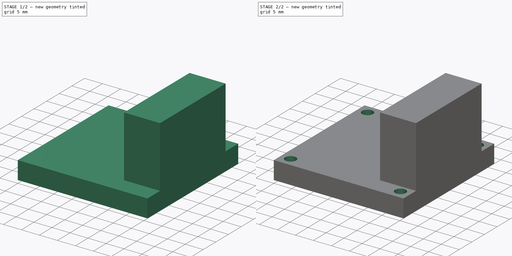
[diagram: build sequence overview — one tinted view per stage of 2, left to right]
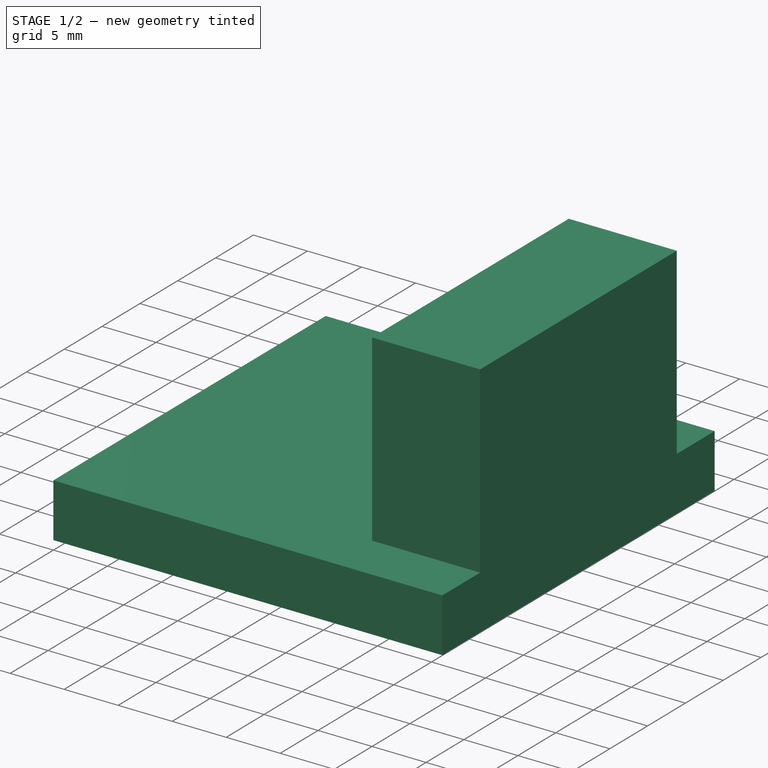
[diagram: stage 1 of 2 — iso view after this stage's code; geometry added in this stage tinted green]
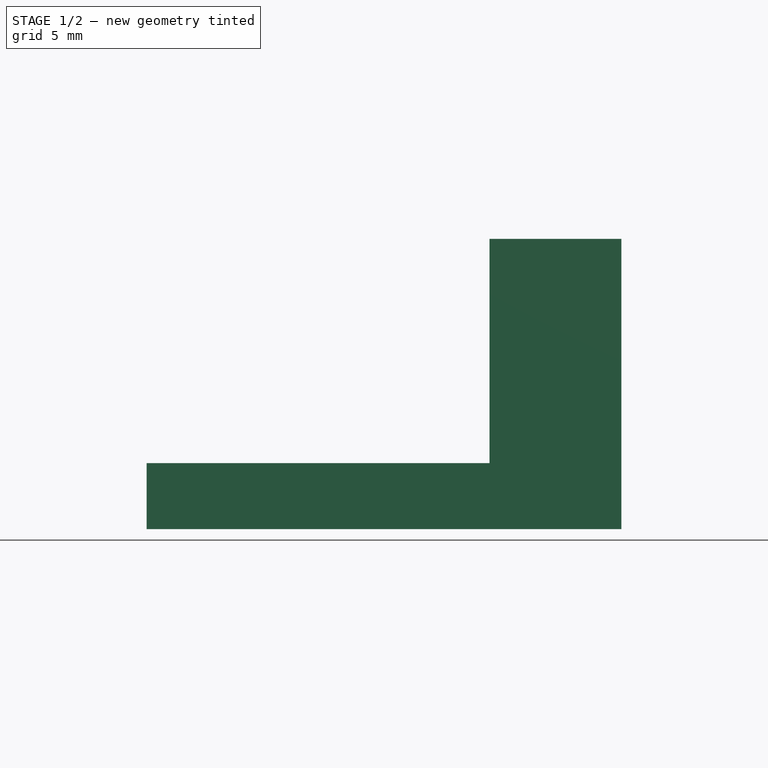
[diagram: stage 1 of 2 — front view after this stage's code; geometry added in this stage tinted green]
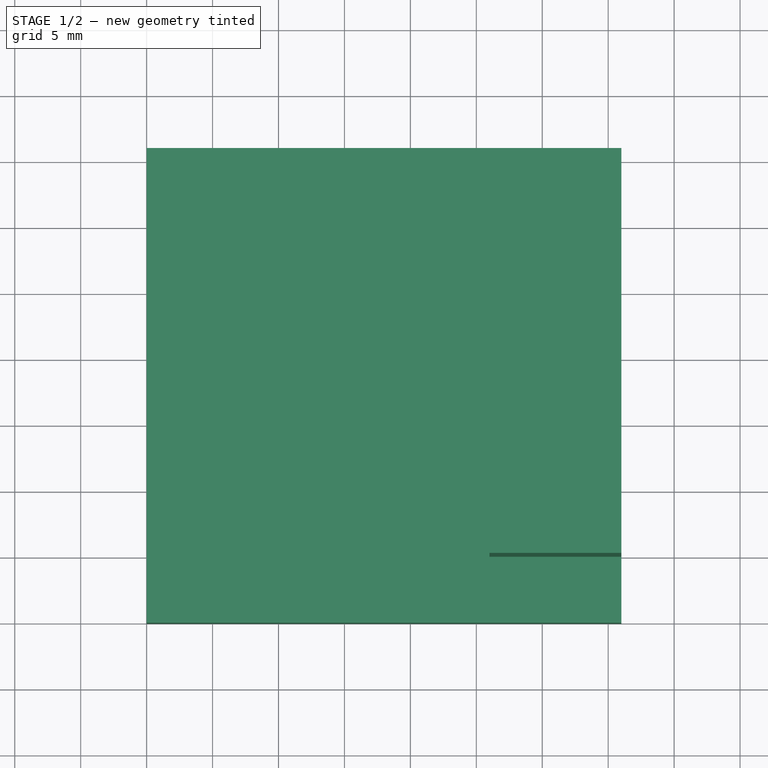
[diagram: stage 1 of 2 — top view after this stage's code; geometry added in this stage tinted green]
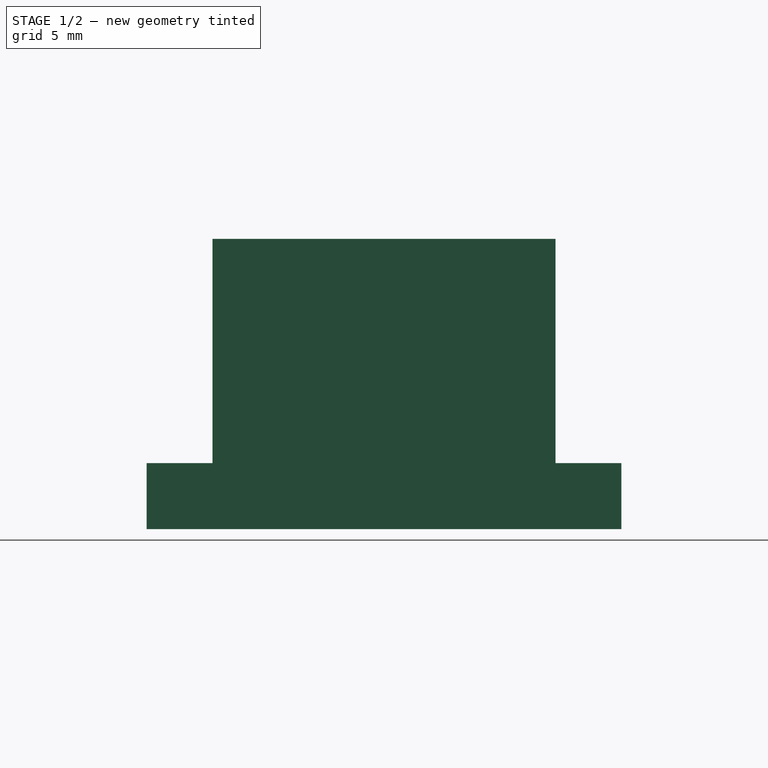
[diagram: stage 1 of 2 — right view after this stage's code; geometry added in this stage tinted green]
FCSTD DOCUMENT  (FreeCAD 0.16R6712 (Git))
Label: Carte_SPRACINGF3
License: All rights reserved
LicenseURL: http://en.wikipedia.org/wiki/All_rights_reserved
objects: Sketcher::SketchObject×3, PartDesign::Pad×2, PartDesign::Pocket×1
note: 9 computed .brp shape members not serialized (recipe doc carries the construction recipe); baked Part::Feature solids carry a one-line shape summary decoded from their .brp

FEATURE [Sketcher::SketchObject] Sketch
  sketch-geometry (4):
    g0: LineSegment StartX=0 StartY=36 StartZ=0 EndX=36 EndY=36 EndZ=0
    g1: LineSegment StartX=36 StartY=36 StartZ=0 EndX=36 EndY=0 EndZ=0
    g2: LineSegment StartX=36 StartY=0 StartZ=0 EndX=0 EndY=0 EndZ=0
    g3: LineSegment StartX=0 StartY=0 StartZ=0 EndX=0 EndY=36 EndZ=0
  constraints (11):
    c: Coincident(g0,g1)
    c: Coincident(g1,g2)
    c: Coincident(g2,g3)
    c: Coincident(g3,g0)
    c: Horizontal(g0)
    c: Horizontal(g2)
    c: Vertical(g1)
    c: Vertical(g3)
    c: Coincident(g2,g-1)
    c: DistanceY(g3,g3) = 36
    c: DistanceX(g2,g2) = 36
FEATURE [PartDesign::Pad] Pad
  Length = 5
  Length2 = 100
  Sketch = -> Sketch
  Type = 0
FEATURE [Sketcher::SketchObject] Sketch001
  ExternalGeometry = -> [Pad]
  Placement = pos=(0,0,5) rot=(0,0,1;0rad)
  Support = -> Pad [Face6]
  sketch-geometry (4):
    g0: LineSegment StartX=26 StartY=31 StartZ=0 EndX=36 EndY=31 EndZ=0
    g1: LineSegment StartX=36 StartY=31 StartZ=0 EndX=36 EndY=5 EndZ=0
    g2: LineSegment StartX=36 StartY=5 StartZ=0 EndX=26 EndY=5 EndZ=0
    g3: LineSegment StartX=26 StartY=5 StartZ=0 EndX=26 EndY=31 EndZ=0
  constraints (12):
    c: Coincident(g0,g1)
    c: Coincident(g1,g2)
    c: Coincident(g2,g3)
    c: Coincident(g3,g0)
    c: Horizontal(g0)
    c: Horizontal(g2)
    c: Vertical(g1)
    c: Vertical(g3)
    c: PointOnObject(g0,g-3)
    c: DistanceX(g0,g0) = 10
    c: DistanceY(g-3,g1) = 5
    c: DistanceY(g0,g-3) = 5
FEATURE [PartDesign::Pad] Pad001
  Length = 17
  Length2 = 100
  Sketch = -> Sketch001
  Type = 0
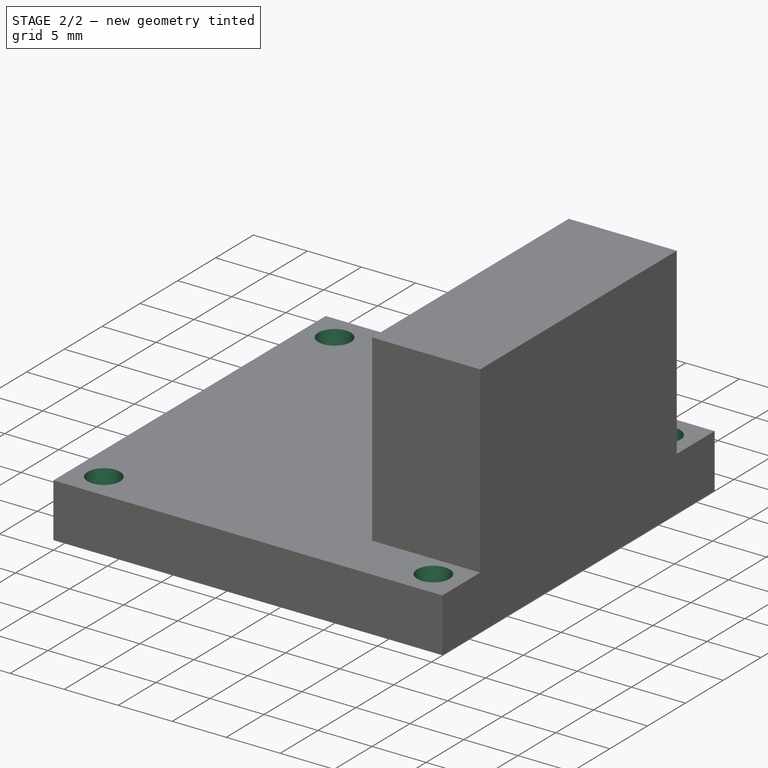
[diagram: stage 2 of 2 — iso view after this stage's code; geometry added in this stage tinted green]
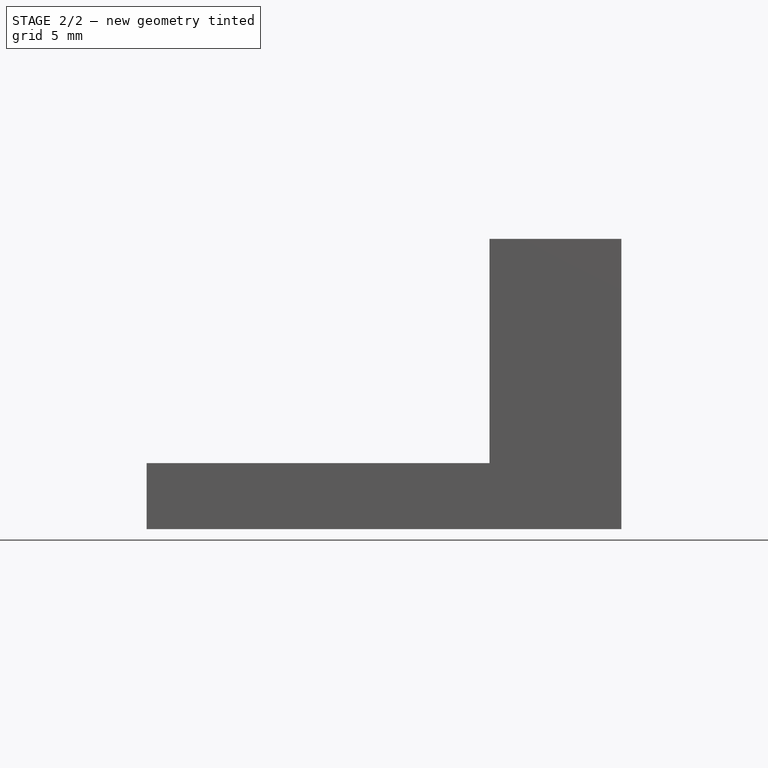
[diagram: stage 2 of 2 — front view after this stage's code; geometry added in this stage tinted green]
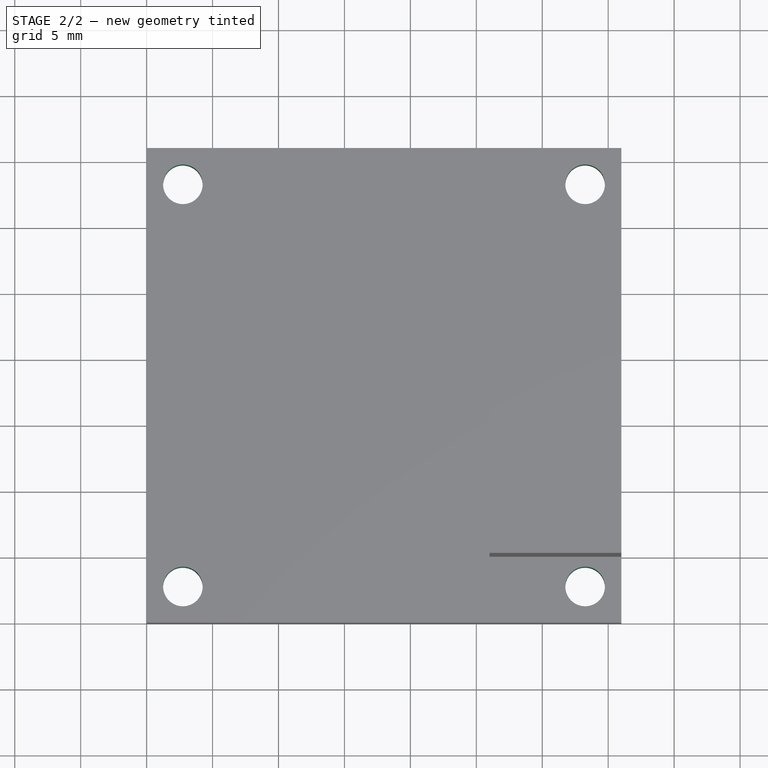
[diagram: stage 2 of 2 — top view after this stage's code; geometry added in this stage tinted green]
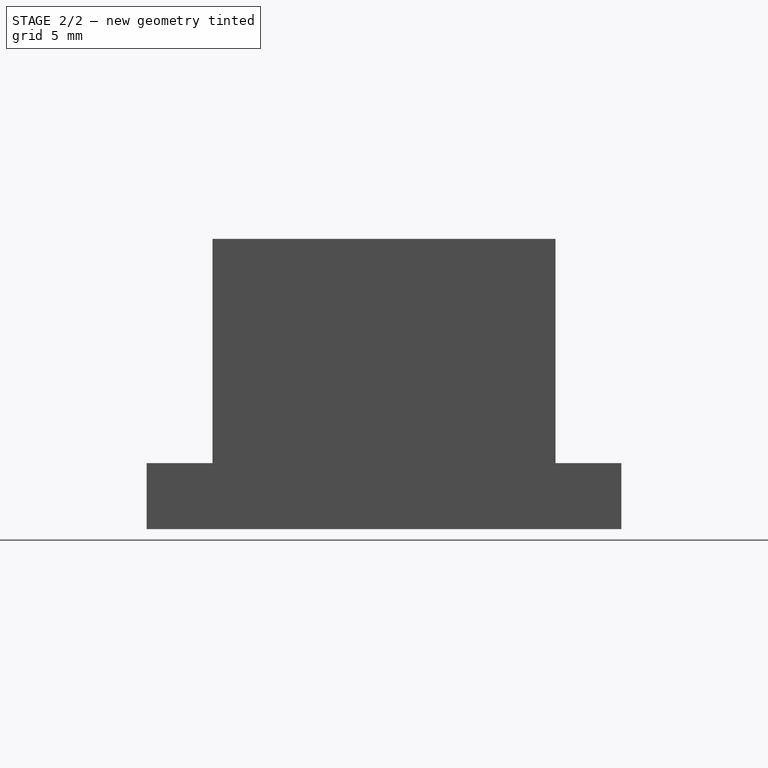
[diagram: stage 2 of 2 — right view after this stage's code; geometry added in this stage tinted green]
FEATURE [Sketcher::SketchObject] Sketch002
  ExternalGeometry = -> [Pad001]
  Placement = pos=(0,0,0) rot=(1,0,0;3.14159rad)
  Support = -> Pad001 [Face4]
  sketch-geometry (6):
    g0: Circle CenterX=2.75 CenterY=-2.75 CenterZ=0 NormalX=0 NormalY=0 NormalZ=1 Radius=1.5
    g1: Circle CenterX=33.25 CenterY=-2.75 CenterZ=0 NormalX=0 NormalY=0 NormalZ=1 Radius=1.5
    g2: Circle CenterX=33.25 CenterY=-33.25 CenterZ=0 NormalX=0 NormalY=0 NormalZ=1 Radius=1.5
    g3: Circle CenterX=2.75 CenterY=-33.25 CenterZ=0 NormalX=0 NormalY=0 NormalZ=1 Radius=1.5
    g4: LineSegment [constr] StartX=18 StartY=0 StartZ=0 EndX=18 EndY=-36 EndZ=0
    g5: LineSegment [constr] StartX=0 StartY=-18 StartZ=0 EndX=36 EndY=-18 EndZ=0
  constraints (18):
    c: DistanceX(g3,g2) = 30.5
    c: DistanceX(g0,g1) = 30.5
    c: DistanceY(g3,g0) = 30.5
    c: DistanceY(g2,g1) = 30.5
    c: PointOnObject(g4,g-1)
    c: Vertical(g4)
    c: PointOnObject(g4,g-3)
    c: Symmetric(g0,g1,g4)
    c: Symmetric(g3,g2,g4)
    c: Symmetric(g-3,g-3,g4)
    c: PointOnObject(g5,g-2)
    c: PointOnObject(g5,g-4)
    c: Symmetric(g-4,g-4,g5)
    c: Symmetric(g2,g1,g5)
    c: Radius(g2) = 1.5
    c: Equal(g2,g3)
    c: Equal(g2,g0)
    c: Equal(g2,g1)
FEATURE [PartDesign::Pocket] Pocket
  Length = 5
  Sketch = -> Sketch002
  Type = 0
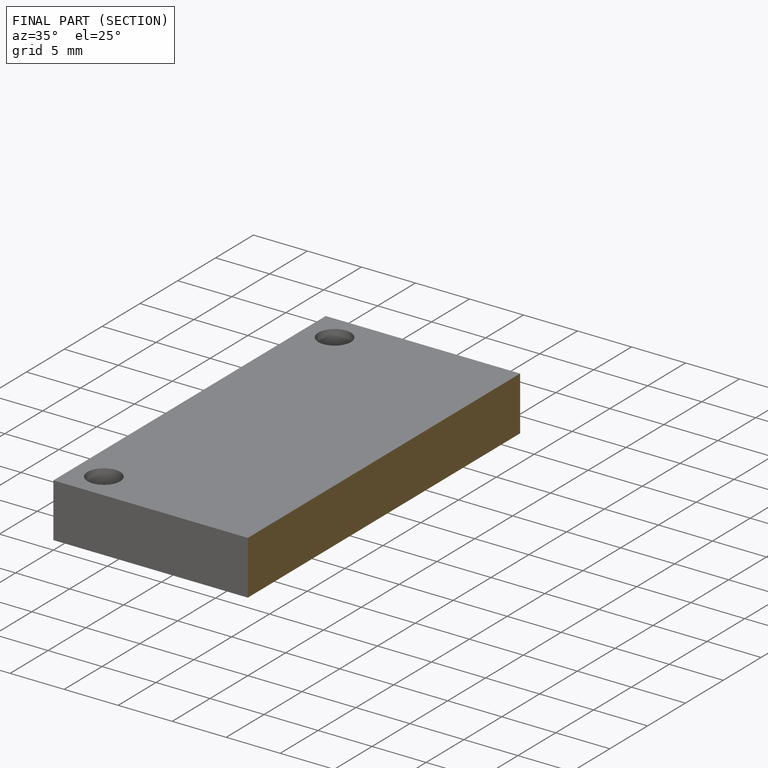
[diagram: finished part — half-section view (interior)]
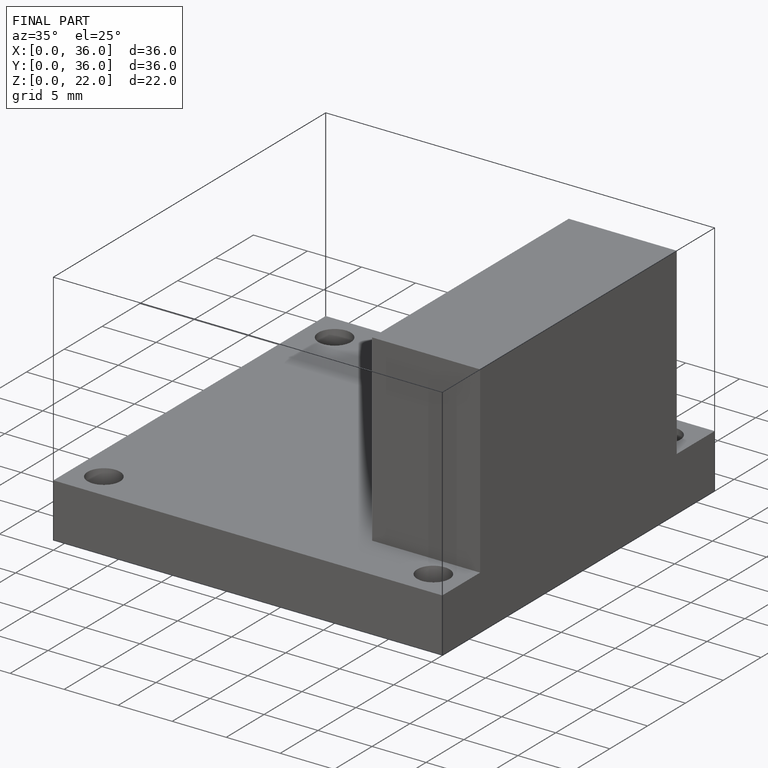
[diagram: finished part — iso view with bounding-box wireframe]
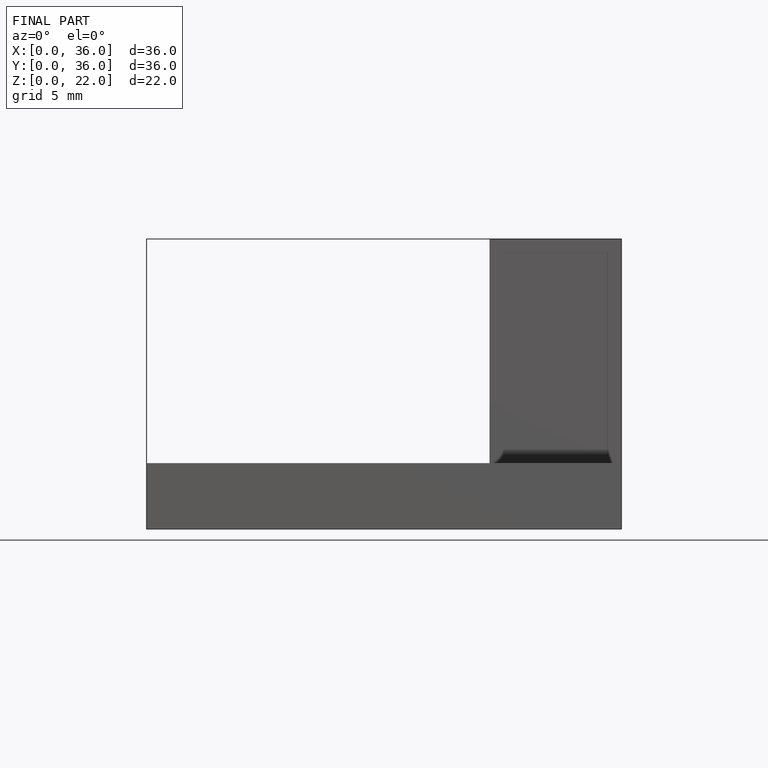
[diagram: finished part — front view with bounding-box wireframe]
